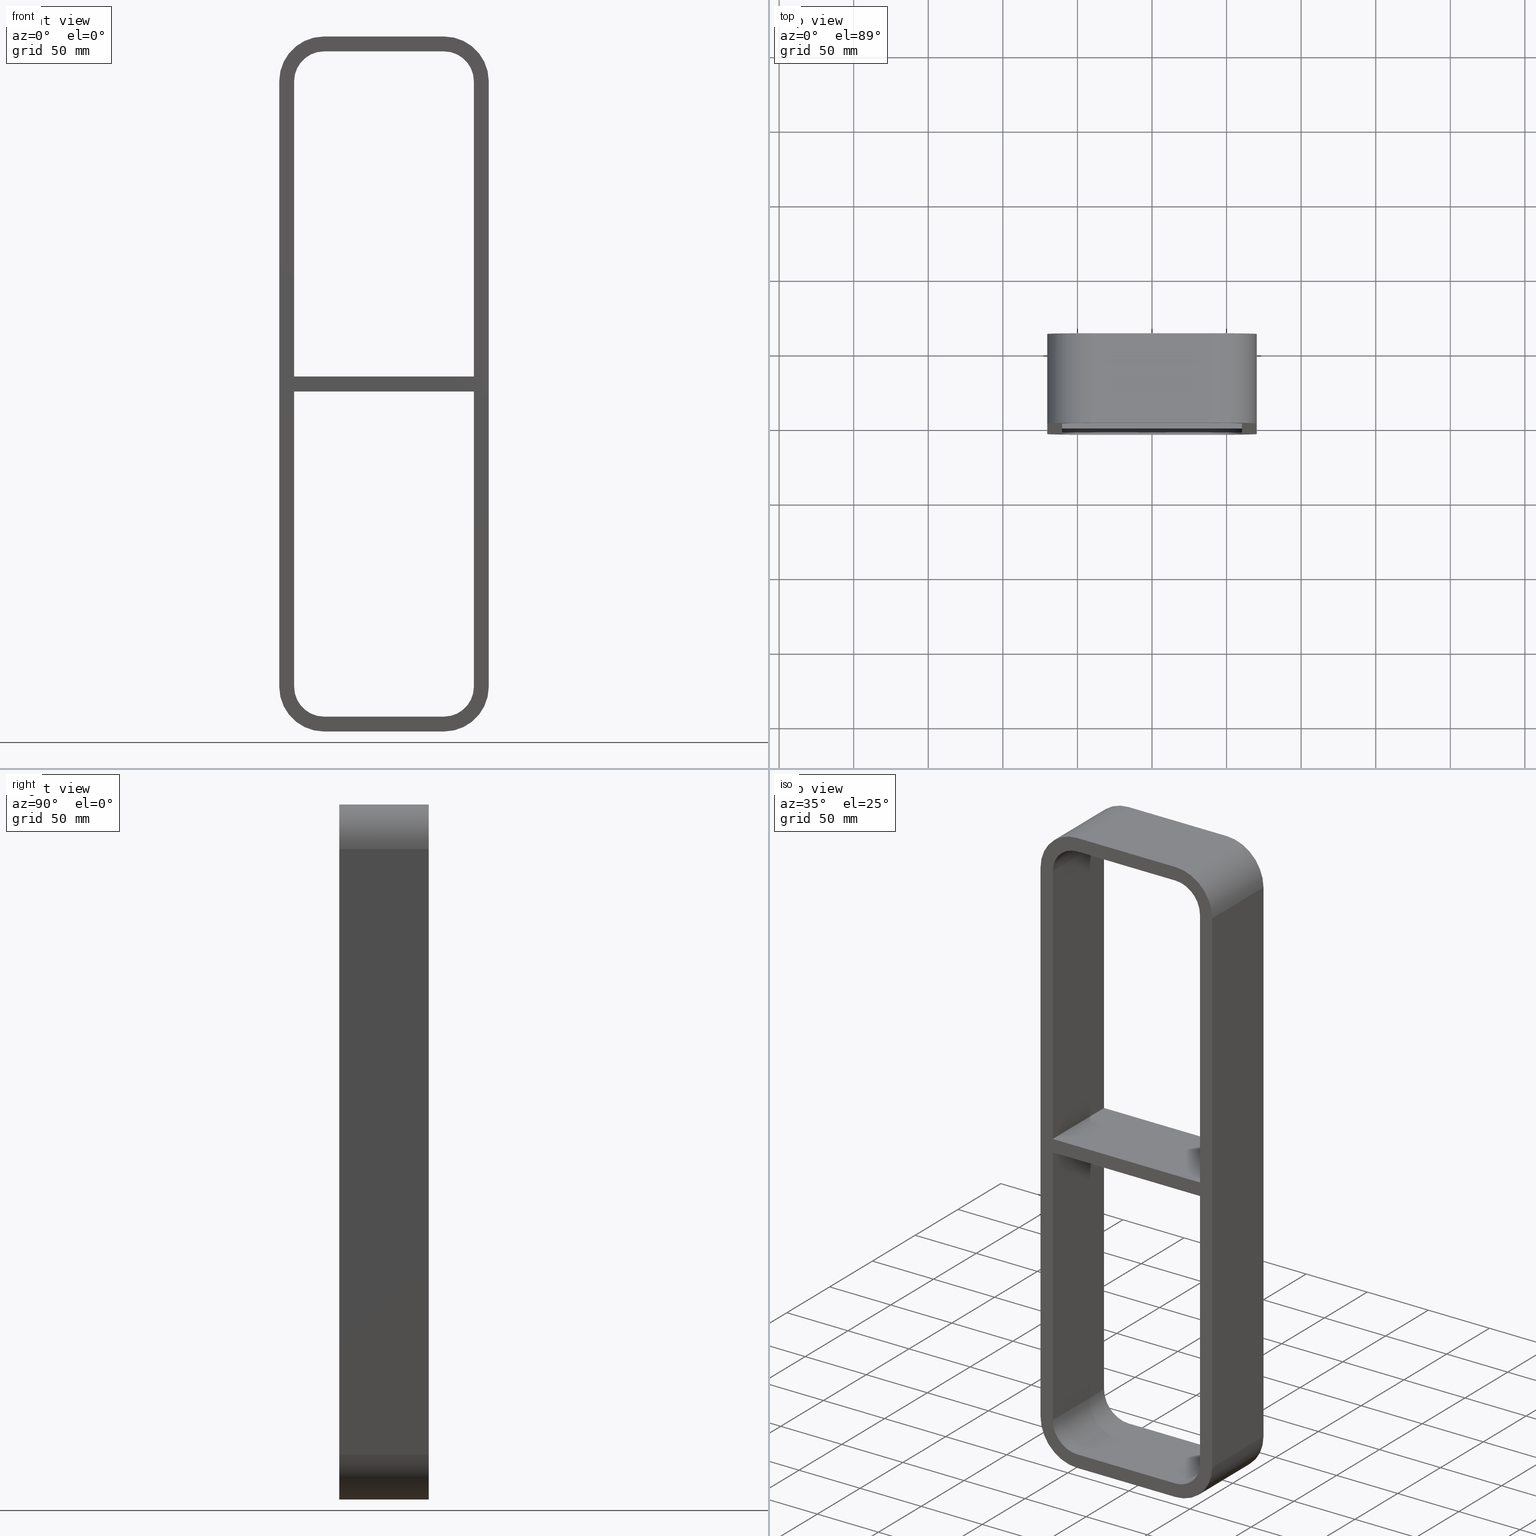
[diagram: canonical four-view strip — front | top / right | iso, engineering-drawing reading convention]
A machine part, canonical four-view strip (front | top / right | iso — engineering-drawing reading convention). The complete STEP part file that produces these views, byte-faithful:
ISO-10303-21;
HEADER;
/****************************************************************
 * Generated by software with PDElib inside                    *
 * PDElib Version v51a, created Wed 11/30/2011                  *
 * ITI Transcendata (http://www.transcendata.com/)              *
 ****************************************************************/
FILE_DESCRIPTION((''),'2;1');
FILE_NAME('N:\\Projects\\Ongoing_Projects\\12403 Transit Designer\\Product-data\\Product Data\\Transit designer Cad Generator\\CreatedFiles\\STEP\\SRCR20-6+6X1.stp','2014-10-31T08:56:36',(''),(''),'Autodesk Inventor 2013','Autodesk Inventor 2013','');
FILE_SCHEMA(('AUTOMOTIVE_DESIGN { 1 0 10303 214 1 1 1 1 }'));
ENDSEC;
DATA;
#5=APPLICATION_CONTEXT('automotive design');
#6=APPLICATION_PROTOCOL_DEFINITION('International Standard','automotive_design',2001,#5);
#7=PRODUCT_CONTEXT('',#5,'mechanical');
#8=PRODUCT('GH-ISO','GH-ISO',$,(#7));
#9=PRODUCT_RELATED_PRODUCT_CATEGORY('part',$,(#8));
#10=PRODUCT_DEFINITION_FORMATION('',$,#8);
#11=PRODUCT_DEFINITION_CONTEXT('part definition',#5,'design');
#12=PRODUCT_DEFINITION('',$,#10,#11);
#18=(NAMED_UNIT(*)PLANE_ANGLE_UNIT()SI_UNIT($,.RADIAN.));
#19=DIMENSIONAL_EXPONENTS(0.0,0.0,0.0,0.0,0.0,0.0,0.0);
#20=PLANE_ANGLE_MEASURE_WITH_UNIT(PLANE_ANGLE_MEASURE(0.0174532925),#18);
#24=(CONVERSION_BASED_UNIT('DEGREE',#20)NAMED_UNIT(#19)PLANE_ANGLE_UNIT());
#28=(NAMED_UNIT(*)SI_UNIT($,.STERADIAN.)SOLID_ANGLE_UNIT());
#32=(LENGTH_UNIT()NAMED_UNIT(*)SI_UNIT(.MILLI.,.METRE.));
#34=UNCERTAINTY_MEASURE_WITH_UNIT(LENGTH_MEASURE(0.01),#32,'DISTANCE_ACCURACY_VALUE','');
#36=(GEOMETRIC_REPRESENTATION_CONTEXT(3)GLOBAL_UNCERTAINTY_ASSIGNED_CONTEXT((#34))GLOBAL_UNIT_ASSIGNED_CONTEXT((#24,#28,#32))REPRESENTATION_CONTEXT('None','None'));
#37=AXIS2_PLACEMENT_3D('',#38,#39,#40);
#38=CARTESIAN_POINT('',(0.0,0.0,0.0));
#39=DIRECTION('',(0.0,0.0,1.0));
#40=DIRECTION('',(1.0,0.0,0.0));
#41=SHAPE_REPRESENTATION('',(#37),#36);
#42=PRODUCT_DEFINITION_SHAPE('','',#12);
#43=SHAPE_DEFINITION_REPRESENTATION(#42,#41);
#49=(NAMED_UNIT(*)PLANE_ANGLE_UNIT()SI_UNIT($,.RADIAN.));
#50=DIMENSIONAL_EXPONENTS(0.0,0.0,0.0,0.0,0.0,0.0,0.0);
#51=PLANE_ANGLE_MEASURE_WITH_UNIT(PLANE_ANGLE_MEASURE(0.0174532925),#49);
#55=(CONVERSION_BASED_UNIT('DEGREE',#51)NAMED_UNIT(#50)PLANE_ANGLE_UNIT());
#59=(NAMED_UNIT(*)SI_UNIT($,.STERADIAN.)SOLID_ANGLE_UNIT());
#63=(LENGTH_UNIT()NAMED_UNIT(*)SI_UNIT(.MILLI.,.METRE.));
#65=UNCERTAINTY_MEASURE_WITH_UNIT(LENGTH_MEASURE(0.000001),#63,'DISTANCE_ACCURACY_VALUE','');
#67=(GEOMETRIC_REPRESENTATION_CONTEXT(3)GLOBAL_UNCERTAINTY_ASSIGNED_CONTEXT((#65))GLOBAL_UNIT_ASSIGNED_CONTEXT((#55,#59,#63))REPRESENTATION_CONTEXT('','3D'));
#68=CARTESIAN_POINT('',(60.249999999999901,-3.0,-5.000000000009095));
#69=DIRECTION('',(0.0,0.0,-1.0));
#70=DIRECTION('',(-1.0,0.0,0.0));
#71=AXIS2_PLACEMENT_3D('',#68,#69,#70);
#72=PLANE('',#71);
#73=CARTESIAN_POINT('',(60.249999999999901,-3.0,-5.000000000009095));
#74=VERTEX_POINT('',#73);
#75=CARTESIAN_POINT('',(-60.249999999999702,-3.0,-5.000000000009095));
#76=VERTEX_POINT('',#75);
#77=CARTESIAN_POINT('',(60.249999999999901,-3.0,-5.000000000009095));
#78=DIRECTION('',(-1.0,0.0,0.0));
#79=VECTOR('',#78,120.4999999999996);
#80=LINE('',#77,#79);
#81=EDGE_CURVE('',#74,#76,#80,.T.);
#82=ORIENTED_EDGE('',*,*,#81,.T.);
#83=CARTESIAN_POINT('',(-60.249999999999702,57.0,-5.000000000009095));
#84=VERTEX_POINT('',#83);
#85=CARTESIAN_POINT('',(-60.25,57.000000000000007,-5.000000000009095));
#86=DIRECTION('',(0.0,-1.0,0.0));
#87=VECTOR('',#86,60.000000000000007);
#88=LINE('',#85,#87);
#89=EDGE_CURVE('',#84,#76,#88,.T.);
#90=ORIENTED_EDGE('',*,*,#89,.F.);
#91=CARTESIAN_POINT('',(60.249999999999901,57.0,-5.000000000009095));
#92=VERTEX_POINT('',#91);
#93=CARTESIAN_POINT('',(60.249999999999901,57.0,-5.000000000009095));
#94=DIRECTION('',(-1.0,0.0,0.0));
#95=VECTOR('',#94,120.4999999999996);
#96=LINE('',#93,#95);
#97=EDGE_CURVE('',#92,#84,#96,.T.);
#98=ORIENTED_EDGE('',*,*,#97,.F.);
#99=CARTESIAN_POINT('',(60.250000000000014,-3.0,-5.000000000009095));
#100=DIRECTION('',(0.0,1.0,0.0));
#101=VECTOR('',#100,60.000000000000007);
#102=LINE('',#99,#101);
#103=EDGE_CURVE('',#74,#92,#102,.T.);
#104=ORIENTED_EDGE('',*,*,#103,.F.);
#105=EDGE_LOOP('',(#82,#90,#98,#104));
#106=FACE_OUTER_BOUND('',#105,.T.);
#107=ADVANCED_FACE('',(#106),#72,.T.);
#108=CARTESIAN_POINT('',(-60.249999999999702,-3.0,5.0));
#109=DIRECTION('',(0.0,0.0,1.0));
#110=DIRECTION('',(1.0,0.0,0.0));
#111=AXIS2_PLACEMENT_3D('',#108,#109,#110);
#112=PLANE('',#111);
#113=CARTESIAN_POINT('',(-60.249999999999702,-3.0,5.0));
#114=VERTEX_POINT('',#113);
#115=CARTESIAN_POINT('',(60.249999999999901,-3.0,5.0));
#116=VERTEX_POINT('',#115);
#117=CARTESIAN_POINT('',(-60.249999999999702,-3.0,5.0));
#118=DIRECTION('',(1.0,0.0,0.0));
#119=VECTOR('',#118,120.4999999999996);
#120=LINE('',#117,#119);
#121=EDGE_CURVE('',#114,#116,#120,.T.);
#122=ORIENTED_EDGE('',*,*,#121,.T.);
#123=CARTESIAN_POINT('',(60.249999999999901,57.0,5.0));
#124=VERTEX_POINT('',#123);
#125=CARTESIAN_POINT('',(60.250000000000021,57.000000000000007,5.0));
#126=DIRECTION('',(0.0,-1.0,0.0));
#127=VECTOR('',#126,60.000000000000007);
#128=LINE('',#125,#127);
#129=EDGE_CURVE('',#124,#116,#128,.T.);
#130=ORIENTED_EDGE('',*,*,#129,.F.);
#131=CARTESIAN_POINT('',(-60.249999999999702,57.0,5.0));
#132=VERTEX_POINT('',#131);
#133=CARTESIAN_POINT('',(-60.249999999999702,57.0,5.0));
#134=DIRECTION('',(1.0,0.0,0.0));
#135=VECTOR('',#134,120.4999999999996);
#136=LINE('',#133,#135);
#137=EDGE_CURVE('',#132,#124,#136,.T.);
#138=ORIENTED_EDGE('',*,*,#137,.F.);
#139=CARTESIAN_POINT('',(-60.25,-3.0,5.0));
#140=DIRECTION('',(0.0,1.0,0.0));
#141=VECTOR('',#140,60.000000000000007);
#142=LINE('',#139,#141);
#143=EDGE_CURVE('',#114,#132,#142,.T.);
#144=ORIENTED_EDGE('',*,*,#143,.F.);
#145=EDGE_LOOP('',(#122,#130,#138,#144));
#146=FACE_OUTER_BOUND('',#145,.T.);
#147=ADVANCED_FACE('',(#146),#112,.T.);
#148=CARTESIAN_POINT('',(-60.25,0.0,-223.0));
#149=DIRECTION('',(-1.0,0.0,0.0));
#150=DIRECTION('',(0.0,0.0,1.0));
#151=AXIS2_PLACEMENT_3D('',#148,#149,#150);
#152=PLANE('',#151);
#153=ORIENTED_EDGE('',*,*,#143,.T.);
#154=CARTESIAN_POINT('',(-60.25,57.0,202.99999999999997));
#155=VERTEX_POINT('',#154);
#156=CARTESIAN_POINT('',(-60.25,57.0,202.99999999999997));
#157=DIRECTION('',(0.0,0.0,-1.0));
#158=VECTOR('',#157,197.99999999999997);
#159=LINE('',#156,#158);
#160=EDGE_CURVE('',#155,#132,#159,.T.);
#161=ORIENTED_EDGE('',*,*,#160,.F.);
#162=CARTESIAN_POINT('',(-60.25,-3.0,202.99999999999997));
#163=VERTEX_POINT('',#162);
#164=CARTESIAN_POINT('',(-60.25,-3.0,202.99999999999997));
#165=DIRECTION('',(0.0,1.0,0.0));
#166=VECTOR('',#165,60.0);
#167=LINE('',#164,#166);
#168=EDGE_CURVE('',#163,#155,#167,.T.);
#169=ORIENTED_EDGE('',*,*,#168,.F.);
#170=CARTESIAN_POINT('',(-60.25,-3.0,5.0));
#171=DIRECTION('',(0.0,0.0,1.0));
#172=VECTOR('',#171,197.99999999999997);
#173=LINE('',#170,#172);
#174=EDGE_CURVE('',#114,#163,#173,.T.);
#175=ORIENTED_EDGE('',*,*,#174,.F.);
#176=EDGE_LOOP('',(#153,#161,#169,#175));
#177=FACE_OUTER_BOUND('',#176,.T.);
#178=ADVANCED_FACE('',(#177),#152,.F.);
#179=CARTESIAN_POINT('',(60.250000000000014,0.0,222.99999999999997));
#180=DIRECTION('',(1.0,0.0,0.0));
#181=DIRECTION('',(0.0,0.0,-1.0));
#182=AXIS2_PLACEMENT_3D('',#179,#180,#181);
#183=PLANE('',#182);
#184=ORIENTED_EDGE('',*,*,#103,.T.);
#185=CARTESIAN_POINT('',(60.250000000000014,57.0,-202.99999999999997));
#186=VERTEX_POINT('',#185);
#187=CARTESIAN_POINT('',(60.250000000000014,57.0,-202.99999999999997));
#188=DIRECTION('',(0.0,0.0,1.0));
#189=VECTOR('',#188,197.99999999999088);
#190=LINE('',#187,#189);
#191=EDGE_CURVE('',#186,#92,#190,.T.);
#192=ORIENTED_EDGE('',*,*,#191,.F.);
#193=CARTESIAN_POINT('',(60.250000000000014,-3.0,-202.99999999999997));
#194=VERTEX_POINT('',#193);
#195=CARTESIAN_POINT('',(60.250000000000014,-3.0,-202.99999999999997));
#196=DIRECTION('',(0.0,1.0,0.0));
#197=VECTOR('',#196,60.0);
#198=LINE('',#195,#197);
#199=EDGE_CURVE('',#194,#186,#198,.T.);
#200=ORIENTED_EDGE('',*,*,#199,.F.);
#201=CARTESIAN_POINT('',(60.250000000000014,-3.0,-5.000000000009095));
#202=DIRECTION('',(0.0,0.0,-1.0));
#203=VECTOR('',#202,197.99999999999088);
#204=LINE('',#201,#203);
#205=EDGE_CURVE('',#74,#194,#204,.T.);
#206=ORIENTED_EDGE('',*,*,#205,.F.);
#207=EDGE_LOOP('',(#184,#192,#200,#206));
#208=FACE_OUTER_BOUND('',#207,.T.);
#209=ADVANCED_FACE('',(#208),#183,.F.);
#210=CARTESIAN_POINT('',(60.250000000000014,0.0,222.99999999999997));
#211=DIRECTION('',(1.0,0.0,0.0));
#212=DIRECTION('',(0.0,0.0,-1.0));
#213=AXIS2_PLACEMENT_3D('',#210,#211,#212);
#214=PLANE('',#213);
#215=ORIENTED_EDGE('',*,*,#129,.T.);
#216=CARTESIAN_POINT('',(60.250000000000014,-3.0,202.99999999999997));
#217=VERTEX_POINT('',#216);
#218=CARTESIAN_POINT('',(60.250000000000014,-3.0,202.99999999999997));
#219=DIRECTION('',(0.0,0.0,-1.0));
#220=VECTOR('',#219,197.99999999999997);
#221=LINE('',#218,#220);
#222=EDGE_CURVE('',#217,#116,#221,.T.);
#223=ORIENTED_EDGE('',*,*,#222,.F.);
#224=CARTESIAN_POINT('',(60.250000000000014,57.0,202.99999999999997));
#225=VERTEX_POINT('',#224);
#226=CARTESIAN_POINT('',(60.250000000000014,57.0,202.99999999999997));
#227=DIRECTION('',(0.0,-1.0,0.0));
#228=VECTOR('',#227,60.0);
#229=LINE('',#226,#228);
#230=EDGE_CURVE('',#225,#217,#229,.T.);
#231=ORIENTED_EDGE('',*,*,#230,.F.);
#232=CARTESIAN_POINT('',(60.250000000000014,57.0,5.0));
#233=DIRECTION('',(0.0,0.0,1.0));
#234=VECTOR('',#233,197.99999999999997);
#235=LINE('',#232,#234);
#236=EDGE_CURVE('',#124,#225,#235,.T.);
#237=ORIENTED_EDGE('',*,*,#236,.F.);
#238=EDGE_LOOP('',(#215,#223,#231,#237));
#239=FACE_OUTER_BOUND('',#238,.T.);
#240=ADVANCED_FACE('',(#239),#214,.F.);
#241=CARTESIAN_POINT('',(40.25,0.0,-203.00000000000006));
#242=DIRECTION('',(0.0,1.0,0.0));
#243=DIRECTION('',(0.707106781186547,0.0,-0.707106781186547));
#244=AXIS2_PLACEMENT_3D('',#241,#242,#243);
#245=CYLINDRICAL_SURFACE('',#244,30.000000000000004);
#246=CARTESIAN_POINT('',(40.25,57.0,-233.00000000000006));
#247=VERTEX_POINT('',#246);
#248=CARTESIAN_POINT('',(70.25,57.0,-203.00000000000006));
#249=VERTEX_POINT('',#248);
#250=CARTESIAN_POINT('',(40.25,57.0,-203.00000000000006));
#251=DIRECTION('',(0.0,-1.0,0.0));
#252=DIRECTION('',(0.707106781186547,0.0,-0.707106781186547));
#253=AXIS2_PLACEMENT_3D('',#250,#251,#252);
#254=CIRCLE('',#253,30.0);
#255=EDGE_CURVE('',#247,#249,#254,.T.);
#256=ORIENTED_EDGE('',*,*,#255,.T.);
#257=CARTESIAN_POINT('',(70.25,-3.0,-203.00000000000006));
#258=VERTEX_POINT('',#257);
#259=CARTESIAN_POINT('',(70.25,57.0,-203.00000000000006));
#260=DIRECTION('',(0.0,-1.0,0.0));
#261=VECTOR('',#260,60.0);
#262=LINE('',#259,#261);
#263=EDGE_CURVE('',#249,#258,#262,.T.);
#264=ORIENTED_EDGE('',*,*,#263,.T.);
#265=CARTESIAN_POINT('',(40.25,-3.0,-233.00000000000006));
#266=VERTEX_POINT('',#265);
#267=CARTESIAN_POINT('',(40.25,-3.0,-203.00000000000006));
#268=DIRECTION('',(0.0,1.0,0.0));
#269=DIRECTION('',(0.707106781186547,0.0,-0.707106781186547));
#270=AXIS2_PLACEMENT_3D('',#267,#268,#269);
#271=CIRCLE('',#270,30.0);
#272=EDGE_CURVE('',#258,#266,#271,.T.);
#273=ORIENTED_EDGE('',*,*,#272,.T.);
#274=CARTESIAN_POINT('',(40.25,-3.0,-233.00000000000006));
#275=DIRECTION('',(0.0,1.0,0.0));
#276=VECTOR('',#275,60.0);
#277=LINE('',#274,#276);
#278=EDGE_CURVE('',#266,#247,#277,.T.);
#279=ORIENTED_EDGE('',*,*,#278,.T.);
#280=EDGE_LOOP('',(#256,#264,#273,#279));
#281=FACE_OUTER_BOUND('',#280,.T.);
#282=ADVANCED_FACE('',(#281),#245,.T.);
#283=CARTESIAN_POINT('',(0.0,-3.0,-3.514638E-014));
#284=DIRECTION('',(0.0,1.0,0.0));
#285=DIRECTION('',(0.0,0.0,1.0));
#286=AXIS2_PLACEMENT_3D('',#283,#284,#285);
#287=PLANE('',#286);
#288=ORIENTED_EDGE('',*,*,#272,.F.);
#289=CARTESIAN_POINT('',(70.25,-3.0,202.99999999999997));
#290=VERTEX_POINT('',#289);
#291=CARTESIAN_POINT('',(70.25,-3.0,-203.00000000000003));
#292=DIRECTION('',(0.0,0.0,1.0));
#293=VECTOR('',#292,406.0);
#294=LINE('',#291,#293);
#295=EDGE_CURVE('',#258,#290,#294,.T.);
#296=ORIENTED_EDGE('',*,*,#295,.T.);
#297=CARTESIAN_POINT('',(40.25,-3.0,232.99999999999997));
#298=VERTEX_POINT('',#297);
#299=CARTESIAN_POINT('',(40.25,-3.0,202.99999999999997));
#300=DIRECTION('',(0.0,1.0,0.0));
#301=DIRECTION('',(0.707106781186547,0.0,0.707106781186547));
#302=AXIS2_PLACEMENT_3D('',#299,#300,#301);
#303=CIRCLE('',#302,30.0);
#304=EDGE_CURVE('',#298,#290,#303,.T.);
#305=ORIENTED_EDGE('',*,*,#304,.F.);
#306=CARTESIAN_POINT('',(-40.25,-3.0,232.99999999999997));
#307=VERTEX_POINT('',#306);
#308=CARTESIAN_POINT('',(40.25,-3.0,232.99999999999997));
#309=DIRECTION('',(-1.0,0.0,0.0));
#310=VECTOR('',#309,80.5);
#311=LINE('',#308,#310);
#312=EDGE_CURVE('',#298,#307,#311,.T.);
#313=ORIENTED_EDGE('',*,*,#312,.T.);
#314=CARTESIAN_POINT('',(-70.25,-3.0,202.99999999999997));
#315=VERTEX_POINT('',#314);
#316=CARTESIAN_POINT('',(-40.25,-3.0,202.99999999999997));
#317=DIRECTION('',(0.0,1.0,0.0));
#318=DIRECTION('',(-0.707106781186547,0.0,0.707106781186547));
#319=AXIS2_PLACEMENT_3D('',#316,#317,#318);
#320=CIRCLE('',#319,30.0);
#321=EDGE_CURVE('',#315,#307,#320,.T.);
#322=ORIENTED_EDGE('',*,*,#321,.F.);
#323=CARTESIAN_POINT('',(-70.25,-3.0,-203.00000000000006));
#324=VERTEX_POINT('',#323);
#325=CARTESIAN_POINT('',(-70.25,-3.0,202.99999999999994));
#326=DIRECTION('',(0.0,0.0,-1.0));
#327=VECTOR('',#326,406.0);
#328=LINE('',#325,#327);
#329=EDGE_CURVE('',#315,#324,#328,.T.);
#330=ORIENTED_EDGE('',*,*,#329,.T.);
#331=CARTESIAN_POINT('',(-40.25,-3.0,-233.00000000000006));
#332=VERTEX_POINT('',#331);
#333=CARTESIAN_POINT('',(-40.25,-3.0,-203.00000000000006));
#334=DIRECTION('',(0.0,1.0,0.0));
#335=DIRECTION('',(-0.707106781186547,0.0,-0.707106781186547));
#336=AXIS2_PLACEMENT_3D('',#333,#334,#335);
#337=CIRCLE('',#336,30.0);
#338=EDGE_CURVE('',#332,#324,#337,.T.);
#339=ORIENTED_EDGE('',*,*,#338,.F.);
#340=CARTESIAN_POINT('',(-40.25,-3.0,-233.00000000000006));
#341=DIRECTION('',(1.0,0.0,0.0));
#342=VECTOR('',#341,80.5);
#343=LINE('',#340,#342);
#344=EDGE_CURVE('',#332,#266,#343,.T.);
#345=ORIENTED_EDGE('',*,*,#344,.T.);
#346=EDGE_LOOP('',(#288,#296,#305,#313,#322,#330,#339,#345));
#347=FACE_OUTER_BOUND('',#346,.T.);
#348=ORIENTED_EDGE('',*,*,#174,.T.);
#349=CARTESIAN_POINT('',(-40.25,-3.0,222.99999999999997));
#350=VERTEX_POINT('',#349);
#351=CARTESIAN_POINT('',(-40.25,-3.0,202.99999999999997));
#352=DIRECTION('',(0.0,-1.0,0.0));
#353=DIRECTION('',(-0.707106781186547,0.0,0.707106781186547));
#354=AXIS2_PLACEMENT_3D('',#351,#352,#353);
#355=CIRCLE('',#354,19.999999999999996);
#356=EDGE_CURVE('',#350,#163,#355,.T.);
#357=ORIENTED_EDGE('',*,*,#356,.F.);
#358=CARTESIAN_POINT('',(40.25,-3.0,222.99999999999997));
#359=VERTEX_POINT('',#358);
#360=CARTESIAN_POINT('',(-40.25,-3.0,222.99999999999997));
#361=DIRECTION('',(1.0,0.0,0.0));
#362=VECTOR('',#361,80.5);
#363=LINE('',#360,#362);
#364=EDGE_CURVE('',#350,#359,#363,.T.);
#365=ORIENTED_EDGE('',*,*,#364,.T.);
#366=CARTESIAN_POINT('',(40.25,-3.0,202.99999999999997));
#367=DIRECTION('',(0.0,-1.0,0.0));
#368=DIRECTION('',(0.707106781186547,0.0,0.707106781186547));
#369=AXIS2_PLACEMENT_3D('',#366,#367,#368);
#370=CIRCLE('',#369,19.999999999999996);
#371=EDGE_CURVE('',#217,#359,#370,.T.);
#372=ORIENTED_EDGE('',*,*,#371,.F.);
#373=ORIENTED_EDGE('',*,*,#222,.T.);
#374=ORIENTED_EDGE('',*,*,#121,.F.);
#375=EDGE_LOOP('',(#348,#357,#365,#372,#373,#374));
#376=FACE_BOUND('',#375,.T.);
#377=ORIENTED_EDGE('',*,*,#81,.F.);
#378=ORIENTED_EDGE('',*,*,#205,.T.);
#379=CARTESIAN_POINT('',(40.250000000000014,-3.0,-223.0));
#380=VERTEX_POINT('',#379);
#381=CARTESIAN_POINT('',(40.250000000000014,-3.0,-202.99999999999997));
#382=DIRECTION('',(0.0,-1.0,0.0));
#383=DIRECTION('',(0.707106781186547,0.0,-0.707106781186547));
#384=AXIS2_PLACEMENT_3D('',#381,#382,#383);
#385=CIRCLE('',#384,19.999999999999996);
#386=EDGE_CURVE('',#380,#194,#385,.T.);
#387=ORIENTED_EDGE('',*,*,#386,.F.);
#388=CARTESIAN_POINT('',(-40.25,-3.0,-223.0));
#389=VERTEX_POINT('',#388);
#390=CARTESIAN_POINT('',(40.250000000000014,-3.0,-223.0));
#391=DIRECTION('',(-1.0,0.0,0.0));
#392=VECTOR('',#391,80.500000000000028);
#393=LINE('',#390,#392);
#394=EDGE_CURVE('',#380,#389,#393,.T.);
#395=ORIENTED_EDGE('',*,*,#394,.T.);
#396=CARTESIAN_POINT('',(-60.25,-3.0,-203.0));
#397=VERTEX_POINT('',#396);
#398=CARTESIAN_POINT('',(-40.25,-3.0,-203.0));
#399=DIRECTION('',(0.0,-1.0,0.0));
#400=DIRECTION('',(-0.707106781186547,0.0,-0.707106781186547));
#401=AXIS2_PLACEMENT_3D('',#398,#399,#400);
#402=CIRCLE('',#401,19.999999999999996);
#403=EDGE_CURVE('',#397,#389,#402,.T.);
#404=ORIENTED_EDGE('',*,*,#403,.F.);
#405=CARTESIAN_POINT('',(-60.25,-3.0,-203.0));
#406=DIRECTION('',(0.0,0.0,1.0));
#407=VECTOR('',#406,197.99999999999091);
#408=LINE('',#405,#407);
#409=EDGE_CURVE('',#397,#76,#408,.T.);
#410=ORIENTED_EDGE('',*,*,#409,.T.);
#411=EDGE_LOOP('',(#377,#378,#387,#395,#404,#410));
#412=FACE_BOUND('',#411,.T.);
#413=ADVANCED_FACE('',(#347,#376,#412),#287,.F.);
#414=CARTESIAN_POINT('',(70.25,0.0,232.99999999999997));
#415=DIRECTION('',(1.0,0.0,0.0));
#416=DIRECTION('',(0.0,0.0,-1.0));
#417=AXIS2_PLACEMENT_3D('',#414,#415,#416);
#418=PLANE('',#417);
#419=ORIENTED_EDGE('',*,*,#263,.F.);
#420=CARTESIAN_POINT('',(70.25,57.0,202.99999999999997));
#421=VERTEX_POINT('',#420);
#422=CARTESIAN_POINT('',(70.25,57.0,202.99999999999997));
#423=DIRECTION('',(0.0,0.0,-1.0));
#424=VECTOR('',#423,406.0);
#425=LINE('',#422,#424);
#426=EDGE_CURVE('',#421,#249,#425,.T.);
#427=ORIENTED_EDGE('',*,*,#426,.F.);
#428=CARTESIAN_POINT('',(70.25,-3.0,202.99999999999997));
#429=DIRECTION('',(0.0,1.0,0.0));
#430=VECTOR('',#429,60.0);
#431=LINE('',#428,#430);
#432=EDGE_CURVE('',#290,#421,#431,.T.);
#433=ORIENTED_EDGE('',*,*,#432,.F.);
#434=ORIENTED_EDGE('',*,*,#295,.F.);
#435=EDGE_LOOP('',(#419,#427,#433,#434));
#436=FACE_OUTER_BOUND('',#435,.T.);
#437=ADVANCED_FACE('',(#436),#418,.T.);
#438=CARTESIAN_POINT('',(40.25,0.0,202.99999999999997));
#439=DIRECTION('',(0.0,-1.0,0.0));
#440=DIRECTION('',(0.707106781186547,0.0,0.707106781186547));
#441=AXIS2_PLACEMENT_3D('',#438,#439,#440);
#442=CYLINDRICAL_SURFACE('',#441,30.000000000000004);
#443=ORIENTED_EDGE('',*,*,#304,.T.);
#444=ORIENTED_EDGE('',*,*,#432,.T.);
#445=CARTESIAN_POINT('',(40.25,57.0,232.99999999999997));
#446=VERTEX_POINT('',#445);
#447=CARTESIAN_POINT('',(40.25,57.0,202.99999999999997));
#448=DIRECTION('',(0.0,-1.0,0.0));
#449=DIRECTION('',(0.707106781186547,0.0,0.707106781186547));
#450=AXIS2_PLACEMENT_3D('',#447,#448,#449);
#451=CIRCLE('',#450,30.0);
#452=EDGE_CURVE('',#421,#446,#451,.T.);
#453=ORIENTED_EDGE('',*,*,#452,.T.);
#454=CARTESIAN_POINT('',(40.25,57.0,232.99999999999997));
#455=DIRECTION('',(0.0,-1.0,0.0));
#456=VECTOR('',#455,60.0);
#457=LINE('',#454,#456);
#458=EDGE_CURVE('',#446,#298,#457,.T.);
#459=ORIENTED_EDGE('',*,*,#458,.T.);
#460=EDGE_LOOP('',(#443,#444,#453,#459));
#461=FACE_OUTER_BOUND('',#460,.T.);
#462=ADVANCED_FACE('',(#461),#442,.T.);
#463=CARTESIAN_POINT('',(-40.25,0.0,-203.00000000000006));
#464=DIRECTION('',(0.0,1.0,0.0));
#465=DIRECTION('',(-0.707106781186547,0.0,-0.707106781186547));
#466=AXIS2_PLACEMENT_3D('',#463,#464,#465);
#467=CYLINDRICAL_SURFACE('',#466,30.000000000000004);
#468=CARTESIAN_POINT('',(-70.25,57.0,-203.00000000000006));
#469=VERTEX_POINT('',#468);
#470=CARTESIAN_POINT('',(-40.25,57.0,-233.00000000000006));
#471=VERTEX_POINT('',#470);
#472=CARTESIAN_POINT('',(-40.25,57.0,-203.00000000000006));
#473=DIRECTION('',(0.0,-1.0,0.0));
#474=DIRECTION('',(-0.707106781186547,0.0,-0.707106781186547));
#475=AXIS2_PLACEMENT_3D('',#472,#473,#474);
#476=CIRCLE('',#475,30.0);
#477=EDGE_CURVE('',#469,#471,#476,.T.);
#478=ORIENTED_EDGE('',*,*,#477,.T.);
#479=CARTESIAN_POINT('',(-40.25,57.0,-233.00000000000006));
#480=DIRECTION('',(0.0,-1.0,0.0));
#481=VECTOR('',#480,60.0);
#482=LINE('',#479,#481);
#483=EDGE_CURVE('',#471,#332,#482,.T.);
#484=ORIENTED_EDGE('',*,*,#483,.T.);
#485=ORIENTED_EDGE('',*,*,#338,.T.);
#486=CARTESIAN_POINT('',(-70.25,-3.0,-203.00000000000006));
#487=DIRECTION('',(0.0,1.0,0.0));
#488=VECTOR('',#487,60.0);
#489=LINE('',#486,#488);
#490=EDGE_CURVE('',#324,#469,#489,.T.);
#491=ORIENTED_EDGE('',*,*,#490,.T.);
#492=EDGE_LOOP('',(#478,#484,#485,#491));
#493=FACE_OUTER_BOUND('',#492,.T.);
#494=ADVANCED_FACE('',(#493),#467,.T.);
#495=CARTESIAN_POINT('',(-70.25,0.0,-233.00000000000006));
#496=DIRECTION('',(-1.0,0.0,0.0));
#497=DIRECTION('',(0.0,0.0,1.0));
#498=AXIS2_PLACEMENT_3D('',#495,#496,#497);
#499=PLANE('',#498);
#500=ORIENTED_EDGE('',*,*,#490,.F.);
#501=ORIENTED_EDGE('',*,*,#329,.F.);
#502=CARTESIAN_POINT('',(-70.25,57.0,202.99999999999997));
#503=VERTEX_POINT('',#502);
#504=CARTESIAN_POINT('',(-70.25,57.0,202.99999999999997));
#505=DIRECTION('',(0.0,-1.0,0.0));
#506=VECTOR('',#505,60.0);
#507=LINE('',#504,#506);
#508=EDGE_CURVE('',#503,#315,#507,.T.);
#509=ORIENTED_EDGE('',*,*,#508,.F.);
#510=CARTESIAN_POINT('',(-70.25,57.0,-203.00000000000006));
#511=DIRECTION('',(0.0,0.0,1.0));
#512=VECTOR('',#511,406.0);
#513=LINE('',#510,#512);
#514=EDGE_CURVE('',#469,#503,#513,.T.);
#515=ORIENTED_EDGE('',*,*,#514,.F.);
#516=EDGE_LOOP('',(#500,#501,#509,#515));
#517=FACE_OUTER_BOUND('',#516,.T.);
#518=ADVANCED_FACE('',(#517),#499,.T.);
#519=CARTESIAN_POINT('',(-40.25,0.0,202.99999999999997));
#520=DIRECTION('',(0.0,1.0,0.0));
#521=DIRECTION('',(-0.707106781186547,0.0,0.707106781186547));
#522=AXIS2_PLACEMENT_3D('',#519,#520,#521);
#523=CYLINDRICAL_SURFACE('',#522,30.000000000000004);
#524=CARTESIAN_POINT('',(-40.25,57.0,232.99999999999997));
#525=VERTEX_POINT('',#524);
#526=CARTESIAN_POINT('',(-40.25,57.0,202.99999999999997));
#527=DIRECTION('',(0.0,-1.0,0.0));
#528=DIRECTION('',(-0.707106781186547,0.0,0.707106781186547));
#529=AXIS2_PLACEMENT_3D('',#526,#527,#528);
#530=CIRCLE('',#529,30.0);
#531=EDGE_CURVE('',#525,#503,#530,.T.);
#532=ORIENTED_EDGE('',*,*,#531,.T.);
#533=ORIENTED_EDGE('',*,*,#508,.T.);
#534=ORIENTED_EDGE('',*,*,#321,.T.);
#535=CARTESIAN_POINT('',(-40.25,-3.0,232.99999999999997));
#536=DIRECTION('',(0.0,1.0,0.0));
#537=VECTOR('',#536,60.0);
#538=LINE('',#535,#537);
#539=EDGE_CURVE('',#307,#525,#538,.T.);
#540=ORIENTED_EDGE('',*,*,#539,.T.);
#541=EDGE_LOOP('',(#532,#533,#534,#540));
#542=FACE_OUTER_BOUND('',#541,.T.);
#543=ADVANCED_FACE('',(#542),#523,.T.);
#544=CARTESIAN_POINT('',(-70.25,0.0,232.99999999999997));
#545=DIRECTION('',(0.0,0.0,1.0));
#546=DIRECTION('',(1.0,0.0,0.0));
#547=AXIS2_PLACEMENT_3D('',#544,#545,#546);
#548=PLANE('',#547);
#549=ORIENTED_EDGE('',*,*,#458,.F.);
#550=CARTESIAN_POINT('',(-40.25,57.0,232.99999999999997));
#551=DIRECTION('',(1.0,0.0,0.0));
#552=VECTOR('',#551,80.5);
#553=LINE('',#550,#552);
#554=EDGE_CURVE('',#525,#446,#553,.T.);
#555=ORIENTED_EDGE('',*,*,#554,.F.);
#556=ORIENTED_EDGE('',*,*,#539,.F.);
#557=ORIENTED_EDGE('',*,*,#312,.F.);
#558=EDGE_LOOP('',(#549,#555,#556,#557));
#559=FACE_OUTER_BOUND('',#558,.T.);
#560=ADVANCED_FACE('',(#559),#548,.T.);
#561=CARTESIAN_POINT('',(-40.25,0.0,202.99999999999997));
#562=DIRECTION('',(0.0,1.0,0.0));
#563=DIRECTION('',(-0.707106781186547,0.0,0.707106781186547));
#564=AXIS2_PLACEMENT_3D('',#561,#562,#563);
#565=CYLINDRICAL_SURFACE('',#564,20.0);
#566=ORIENTED_EDGE('',*,*,#356,.T.);
#567=ORIENTED_EDGE('',*,*,#168,.T.);
#568=CARTESIAN_POINT('',(-40.25,57.0,222.99999999999997));
#569=VERTEX_POINT('',#568);
#570=CARTESIAN_POINT('',(-40.25,57.0,202.99999999999997));
#571=DIRECTION('',(0.0,1.0,0.0));
#572=DIRECTION('',(-0.707106781186547,0.0,0.707106781186547));
#573=AXIS2_PLACEMENT_3D('',#570,#571,#572);
#574=CIRCLE('',#573,19.999999999999996);
#575=EDGE_CURVE('',#155,#569,#574,.T.);
#576=ORIENTED_EDGE('',*,*,#575,.T.);
#577=CARTESIAN_POINT('',(-40.25,57.0,222.99999999999997));
#578=DIRECTION('',(0.0,-1.0,0.0));
#579=VECTOR('',#578,60.0);
#580=LINE('',#577,#579);
#581=EDGE_CURVE('',#569,#350,#580,.T.);
#582=ORIENTED_EDGE('',*,*,#581,.T.);
#583=EDGE_LOOP('',(#566,#567,#576,#582));
#584=FACE_OUTER_BOUND('',#583,.T.);
#585=ADVANCED_FACE('',(#584),#565,.F.);
#586=CARTESIAN_POINT('',(-60.25,0.0,-223.0));
#587=DIRECTION('',(-1.0,0.0,0.0));
#588=DIRECTION('',(0.0,0.0,1.0));
#589=AXIS2_PLACEMENT_3D('',#586,#587,#588);
#590=PLANE('',#589);
#591=ORIENTED_EDGE('',*,*,#89,.T.);
#592=ORIENTED_EDGE('',*,*,#409,.F.);
#593=CARTESIAN_POINT('',(-60.25,57.0,-203.0));
#594=VERTEX_POINT('',#593);
#595=CARTESIAN_POINT('',(-60.25,57.0,-203.0));
#596=DIRECTION('',(0.0,-1.0,0.0));
#597=VECTOR('',#596,60.0);
#598=LINE('',#595,#597);
#599=EDGE_CURVE('',#594,#397,#598,.T.);
#600=ORIENTED_EDGE('',*,*,#599,.F.);
#601=CARTESIAN_POINT('',(-60.25,57.0,-5.000000000009095));
#602=DIRECTION('',(0.0,0.0,-1.0));
#603=VECTOR('',#602,197.99999999999091);
#604=LINE('',#601,#603);
#605=EDGE_CURVE('',#84,#594,#604,.T.);
#606=ORIENTED_EDGE('',*,*,#605,.F.);
#607=EDGE_LOOP('',(#591,#592,#600,#606));
#608=FACE_OUTER_BOUND('',#607,.T.);
#609=ADVANCED_FACE('',(#608),#590,.F.);
#610=CARTESIAN_POINT('',(40.25,0.0,202.99999999999997));
#611=DIRECTION('',(0.0,1.0,0.0));
#612=DIRECTION('',(0.707106781186547,0.0,0.707106781186547));
#613=AXIS2_PLACEMENT_3D('',#610,#611,#612);
#614=CYLINDRICAL_SURFACE('',#613,20.0);
#615=ORIENTED_EDGE('',*,*,#371,.T.);
#616=CARTESIAN_POINT('',(40.25,57.0,222.99999999999997));
#617=VERTEX_POINT('',#616);
#618=CARTESIAN_POINT('',(40.25,-3.0,222.99999999999997));
#619=DIRECTION('',(0.0,1.0,0.0));
#620=VECTOR('',#619,60.0);
#621=LINE('',#618,#620);
#622=EDGE_CURVE('',#359,#617,#621,.T.);
#623=ORIENTED_EDGE('',*,*,#622,.T.);
#624=CARTESIAN_POINT('',(40.25,57.0,202.99999999999997));
#625=DIRECTION('',(0.0,1.0,0.0));
#626=DIRECTION('',(0.707106781186547,0.0,0.707106781186547));
#627=AXIS2_PLACEMENT_3D('',#624,#625,#626);
#628=CIRCLE('',#627,19.999999999999996);
#629=EDGE_CURVE('',#617,#225,#628,.T.);
#630=ORIENTED_EDGE('',*,*,#629,.T.);
#631=ORIENTED_EDGE('',*,*,#230,.T.);
#632=EDGE_LOOP('',(#615,#623,#630,#631));
#633=FACE_OUTER_BOUND('',#632,.T.);
#634=ADVANCED_FACE('',(#633),#614,.F.);
#635=CARTESIAN_POINT('',(-60.25,0.0,222.99999999999997));
#636=DIRECTION('',(0.0,0.0,1.0));
#637=DIRECTION('',(1.0,0.0,0.0));
#638=AXIS2_PLACEMENT_3D('',#635,#636,#637);
#639=PLANE('',#638);
#640=ORIENTED_EDGE('',*,*,#581,.F.);
#641=CARTESIAN_POINT('',(40.25,57.0,222.99999999999997));
#642=DIRECTION('',(-1.0,0.0,0.0));
#643=VECTOR('',#642,80.5);
#644=LINE('',#641,#643);
#645=EDGE_CURVE('',#617,#569,#644,.T.);
#646=ORIENTED_EDGE('',*,*,#645,.F.);
#647=ORIENTED_EDGE('',*,*,#622,.F.);
#648=ORIENTED_EDGE('',*,*,#364,.F.);
#649=EDGE_LOOP('',(#640,#646,#647,#648));
#650=FACE_OUTER_BOUND('',#649,.T.);
#651=ADVANCED_FACE('',(#650),#639,.F.);
#652=CARTESIAN_POINT('',(-40.25,0.0,-203.0));
#653=DIRECTION('',(0.0,1.0,0.0));
#654=DIRECTION('',(-0.707106781186547,0.0,-0.707106781186547));
#655=AXIS2_PLACEMENT_3D('',#652,#653,#654);
#656=CYLINDRICAL_SURFACE('',#655,20.0);
#657=ORIENTED_EDGE('',*,*,#403,.T.);
#658=CARTESIAN_POINT('',(-40.25,57.0,-223.0));
#659=VERTEX_POINT('',#658);
#660=CARTESIAN_POINT('',(-40.25,-3.0,-223.0));
#661=DIRECTION('',(0.0,1.0,0.0));
#662=VECTOR('',#661,60.0);
#663=LINE('',#660,#662);
#664=EDGE_CURVE('',#389,#659,#663,.T.);
#665=ORIENTED_EDGE('',*,*,#664,.T.);
#666=CARTESIAN_POINT('',(-40.25,57.0,-203.0));
#667=DIRECTION('',(0.0,1.0,0.0));
#668=DIRECTION('',(-0.707106781186547,0.0,-0.707106781186547));
#669=AXIS2_PLACEMENT_3D('',#666,#667,#668);
#670=CIRCLE('',#669,19.999999999999996);
#671=EDGE_CURVE('',#659,#594,#670,.T.);
#672=ORIENTED_EDGE('',*,*,#671,.T.);
#673=ORIENTED_EDGE('',*,*,#599,.T.);
#674=EDGE_LOOP('',(#657,#665,#672,#673));
#675=FACE_OUTER_BOUND('',#674,.T.);
#676=ADVANCED_FACE('',(#675),#656,.F.);
#677=CARTESIAN_POINT('',(60.250000000000014,0.0,-223.0));
#678=DIRECTION('',(0.0,0.0,-1.0));
#679=DIRECTION('',(-1.0,0.0,0.0));
#680=AXIS2_PLACEMENT_3D('',#677,#678,#679);
#681=PLANE('',#680);
#682=ORIENTED_EDGE('',*,*,#664,.F.);
#683=ORIENTED_EDGE('',*,*,#394,.F.);
#684=CARTESIAN_POINT('',(40.250000000000014,57.0,-223.0));
#685=VERTEX_POINT('',#684);
#686=CARTESIAN_POINT('',(40.250000000000014,57.0,-223.0));
#687=DIRECTION('',(0.0,-1.0,0.0));
#688=VECTOR('',#687,60.0);
#689=LINE('',#686,#688);
#690=EDGE_CURVE('',#685,#380,#689,.T.);
#691=ORIENTED_EDGE('',*,*,#690,.F.);
#692=CARTESIAN_POINT('',(-40.250000000000007,57.0,-223.0));
#693=DIRECTION('',(1.0,0.0,0.0));
#694=VECTOR('',#693,80.500000000000028);
#695=LINE('',#692,#694);
#696=EDGE_CURVE('',#659,#685,#695,.T.);
#697=ORIENTED_EDGE('',*,*,#696,.F.);
#698=EDGE_LOOP('',(#682,#683,#691,#697));
#699=FACE_OUTER_BOUND('',#698,.T.);
#700=ADVANCED_FACE('',(#699),#681,.F.);
#701=CARTESIAN_POINT('',(40.250000000000014,0.0,-202.99999999999997));
#702=DIRECTION('',(0.0,-1.0,0.0));
#703=DIRECTION('',(0.707106781186547,0.0,-0.707106781186547));
#704=AXIS2_PLACEMENT_3D('',#701,#702,#703);
#705=CYLINDRICAL_SURFACE('',#704,20.0);
#706=CARTESIAN_POINT('',(40.250000000000014,57.0,-202.99999999999997));
#707=DIRECTION('',(0.0,1.0,0.0));
#708=DIRECTION('',(0.707106781186547,0.0,-0.707106781186547));
#709=AXIS2_PLACEMENT_3D('',#706,#707,#708);
#710=CIRCLE('',#709,19.999999999999996);
#711=EDGE_CURVE('',#186,#685,#710,.T.);
#712=ORIENTED_EDGE('',*,*,#711,.T.);
#713=ORIENTED_EDGE('',*,*,#690,.T.);
#714=ORIENTED_EDGE('',*,*,#386,.T.);
#715=ORIENTED_EDGE('',*,*,#199,.T.);
#716=EDGE_LOOP('',(#712,#713,#714,#715));
#717=FACE_OUTER_BOUND('',#716,.T.);
#718=ADVANCED_FACE('',(#717),#705,.F.);
#719=CARTESIAN_POINT('',(70.25,0.0,-233.00000000000006));
#720=DIRECTION('',(0.0,0.0,-1.0));
#721=DIRECTION('',(-1.0,0.0,0.0));
#722=AXIS2_PLACEMENT_3D('',#719,#720,#721);
#723=PLANE('',#722);
#724=ORIENTED_EDGE('',*,*,#278,.F.);
#725=ORIENTED_EDGE('',*,*,#344,.F.);
#726=ORIENTED_EDGE('',*,*,#483,.F.);
#727=CARTESIAN_POINT('',(40.25,57.0,-233.00000000000006));
#728=DIRECTION('',(-1.0,0.0,0.0));
#729=VECTOR('',#728,80.5);
#730=LINE('',#727,#729);
#731=EDGE_CURVE('',#247,#471,#730,.T.);
#732=ORIENTED_EDGE('',*,*,#731,.F.);
#733=EDGE_LOOP('',(#724,#725,#726,#732));
#734=FACE_OUTER_BOUND('',#733,.T.);
#735=ADVANCED_FACE('',(#734),#723,.T.);
#736=CARTESIAN_POINT('',(0.0,57.0,-3.514638E-014));
#737=DIRECTION('',(0.0,1.0,0.0));
#738=DIRECTION('',(0.0,0.0,1.0));
#739=AXIS2_PLACEMENT_3D('',#736,#737,#738);
#740=PLANE('',#739);
#741=ORIENTED_EDGE('',*,*,#255,.F.);
#742=ORIENTED_EDGE('',*,*,#731,.T.);
#743=ORIENTED_EDGE('',*,*,#477,.F.);
#744=ORIENTED_EDGE('',*,*,#514,.T.);
#745=ORIENTED_EDGE('',*,*,#531,.F.);
#746=ORIENTED_EDGE('',*,*,#554,.T.);
#747=ORIENTED_EDGE('',*,*,#452,.F.);
#748=ORIENTED_EDGE('',*,*,#426,.T.);
#749=EDGE_LOOP('',(#741,#742,#743,#744,#745,#746,#747,#748));
#750=FACE_OUTER_BOUND('',#749,.T.);
#751=ORIENTED_EDGE('',*,*,#605,.T.);
#752=ORIENTED_EDGE('',*,*,#671,.F.);
#753=ORIENTED_EDGE('',*,*,#696,.T.);
#754=ORIENTED_EDGE('',*,*,#711,.F.);
#755=ORIENTED_EDGE('',*,*,#191,.T.);
#756=ORIENTED_EDGE('',*,*,#97,.T.);
#757=EDGE_LOOP('',(#751,#752,#753,#754,#755,#756));
#758=FACE_BOUND('',#757,.T.);
#759=ORIENTED_EDGE('',*,*,#137,.T.);
#760=ORIENTED_EDGE('',*,*,#236,.T.);
#761=ORIENTED_EDGE('',*,*,#629,.F.);
#762=ORIENTED_EDGE('',*,*,#645,.T.);
#763=ORIENTED_EDGE('',*,*,#575,.F.);
#764=ORIENTED_EDGE('',*,*,#160,.T.);
#765=EDGE_LOOP('',(#759,#760,#761,#762,#763,#764));
#766=FACE_BOUND('',#765,.T.);
#767=ADVANCED_FACE('',(#750,#758,#766),#740,.T.);
#768=CLOSED_SHELL('',(#107,#147,#178,#209,#240,#282,#413,#437,#462,#494,#518,#543,#560,#585,#609,#634,#651,#676,#700,#718,#735,#767));
#769=MANIFOLD_SOLID_BREP('Solid1',#768);
#770=COLOUR_RGB('Silicon Nitride - Polished',0.800000011920929,0.796078443527222,0.701960802078247);
#771=FILL_AREA_STYLE_COLOUR('Silicon Nitride - Polished',#770);
#772=FILL_AREA_STYLE('Silicon Nitride - Polished',(#771));
#773=SURFACE_STYLE_FILL_AREA(#772);
#774=SURFACE_SIDE_STYLE('Silicon Nitride - Polished',(#773));
#775=SURFACE_STYLE_USAGE(.BOTH.,#774);
#776=PRESENTATION_STYLE_ASSIGNMENT((#775));
#777=STYLED_ITEM('',(#776),#769);
#778=MECHANICAL_DESIGN_GEOMETRIC_PRESENTATION_REPRESENTATION('',(#777),#36);
#779=ADVANCED_BREP_SHAPE_REPRESENTATION('ABSR',(#769),#36);
#780=SHAPE_REPRESENTATION_RELATIONSHIP('SRR','None',#779,#41);
ENDSEC;
END-ISO-10303-21;
